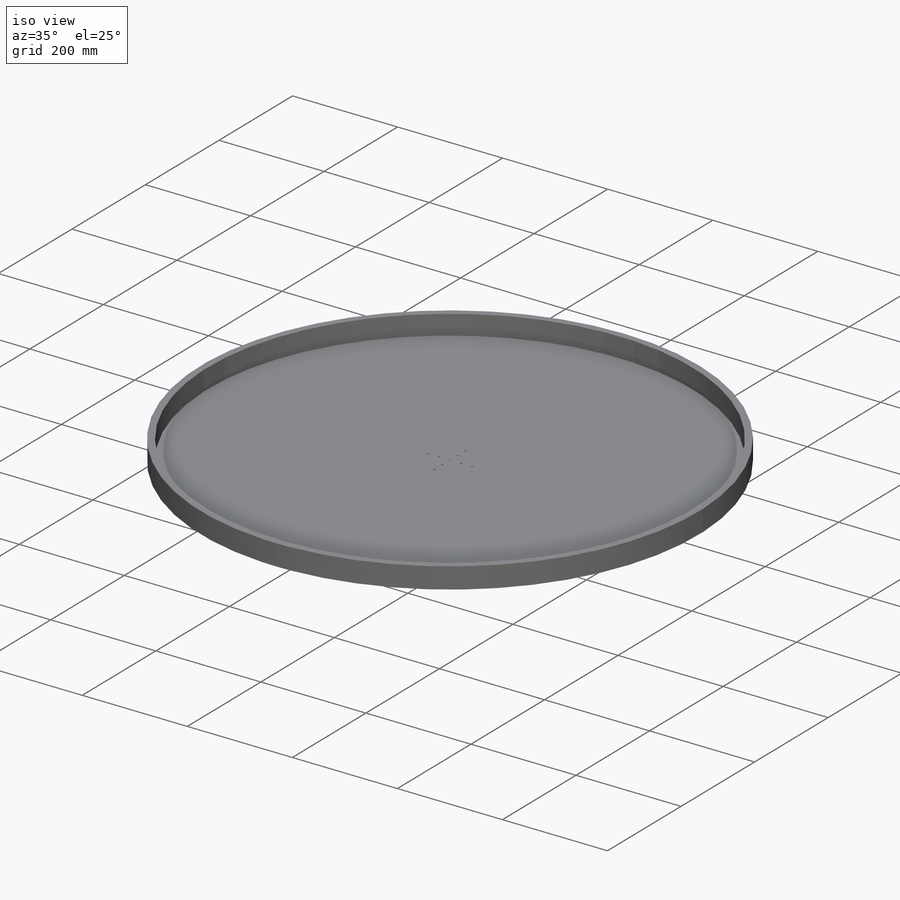
[diagram: iso view]
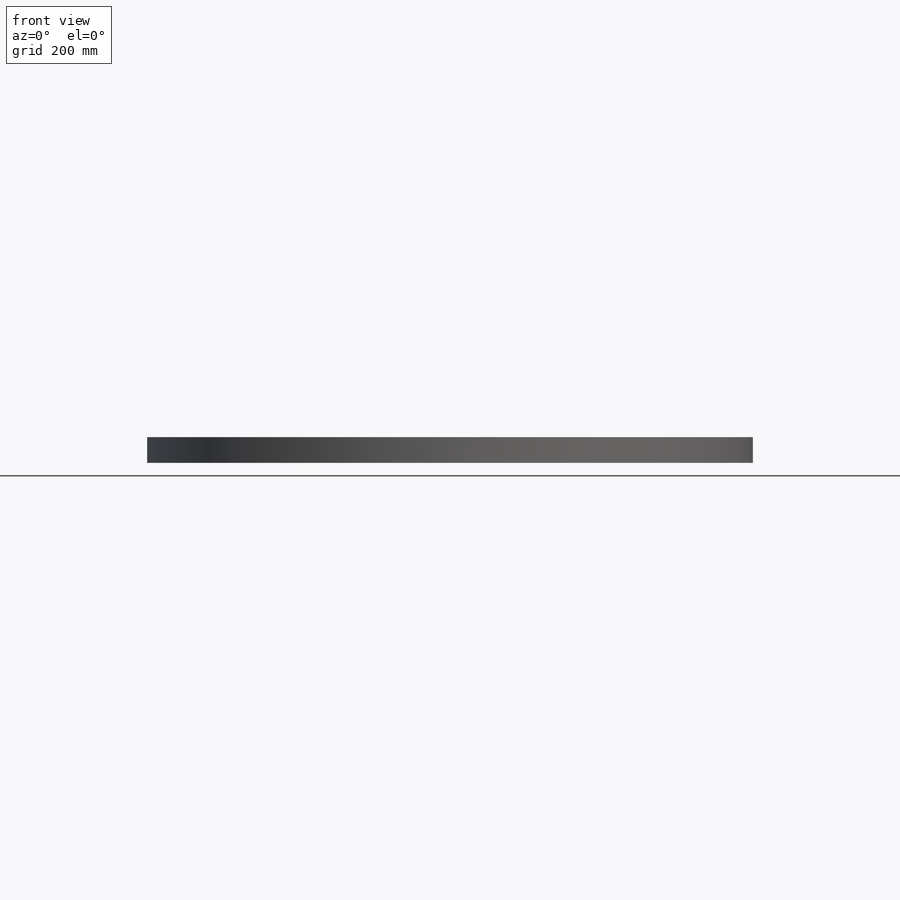
[diagram: front view]
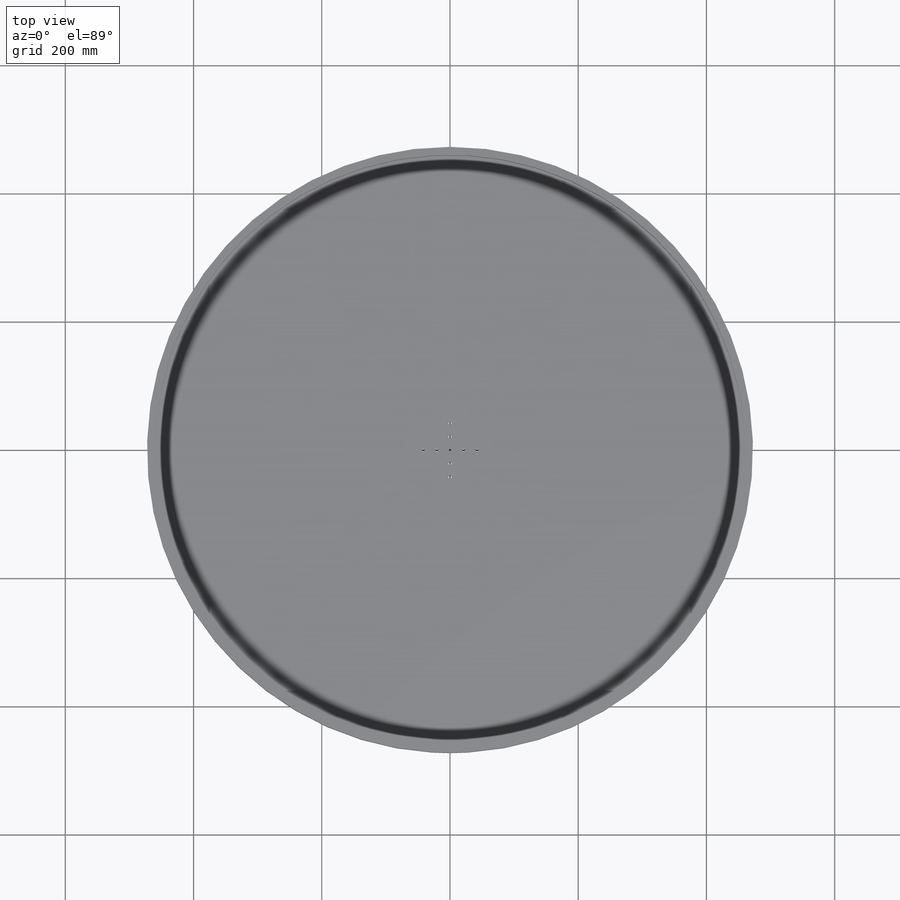
[diagram: top view]
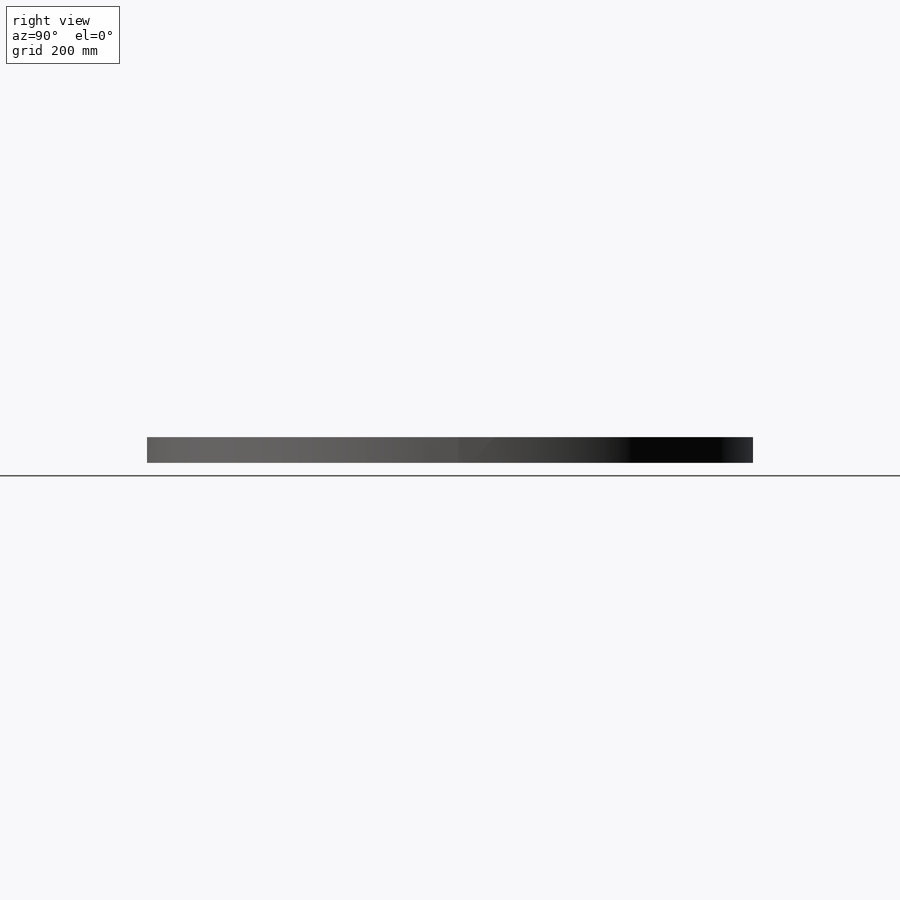
[diagram: right view]
SOLIDWORKS PART (.sldprt)
format: sldprt  version: not decoded by parser v0  size: 223,744 bytes
history: native  units: mm
features: sketch x5, cut_extrude x3, material x1, extrude x1 (+11 scaffold rows collapsed)
feature tree (21):
  scaffold x11  (default folders/planes/origin — collapsed)
  material  "Material <not specified>"
  sketch  "Sketch1"  dims[D1=945.0mm]
  extrude  "Boss-Extrude1"  Depth=40mm
  sketch  "Sketch3"  dims[D1=920.0mm]
  cut_extrude  "Cut-Extrude1"  Depth=37.46mm
  sketch  "Sketch5"  dims[c1.D1=3.0mm c1.D2=1.0mm c2.D1=3.0mm]
  sketch  "Sketch4"  dims[D1=12.7mm D2=12.7mm D3=381.0mm D4=381.0mm D5=12.7mm D6=12.7mm D7=381.0mm D8=381.0mm]
  cut_extrude  "Cut-Extrude3"  [1 undecoded]
  sketch  "Sketch8"  dims[c1.D1=4.04mm c1.D2=4.04mm c1.D4=4.04mm c1.D5=4.04mm c2.D2=42.0mm c2.D5=21.0mm c2.D3=4.0 c2.D6=4.0]
  cut_extrude  "Cut-Extrude4"  [1 undecoded]
decode coverage: 7 of 9 modeling features carry decoded parameters
note: 2 parameter values undecoded
note: suppression state not decoded; provenance and decode notes live in map.json
